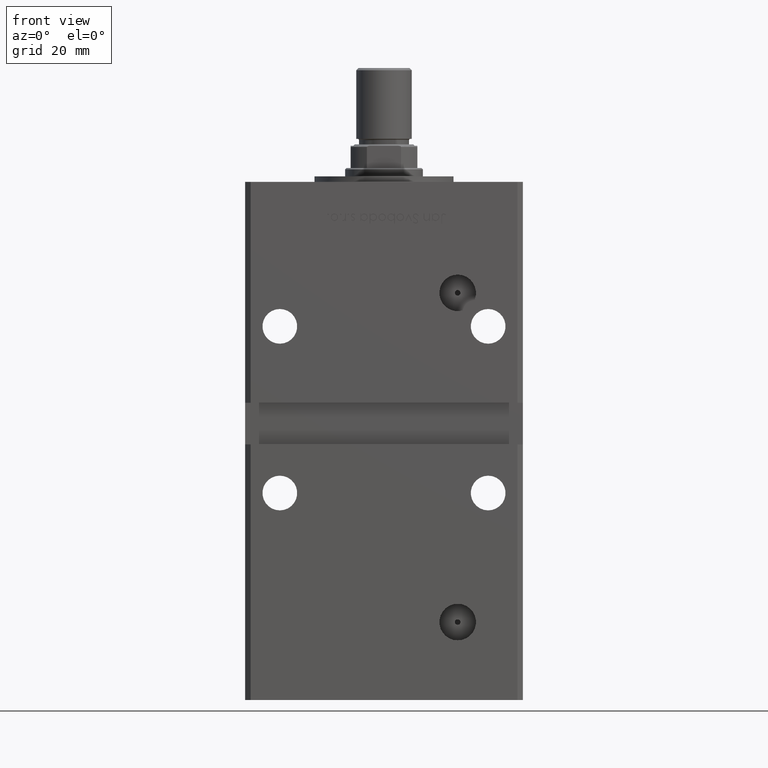
[diagram: clean part render]
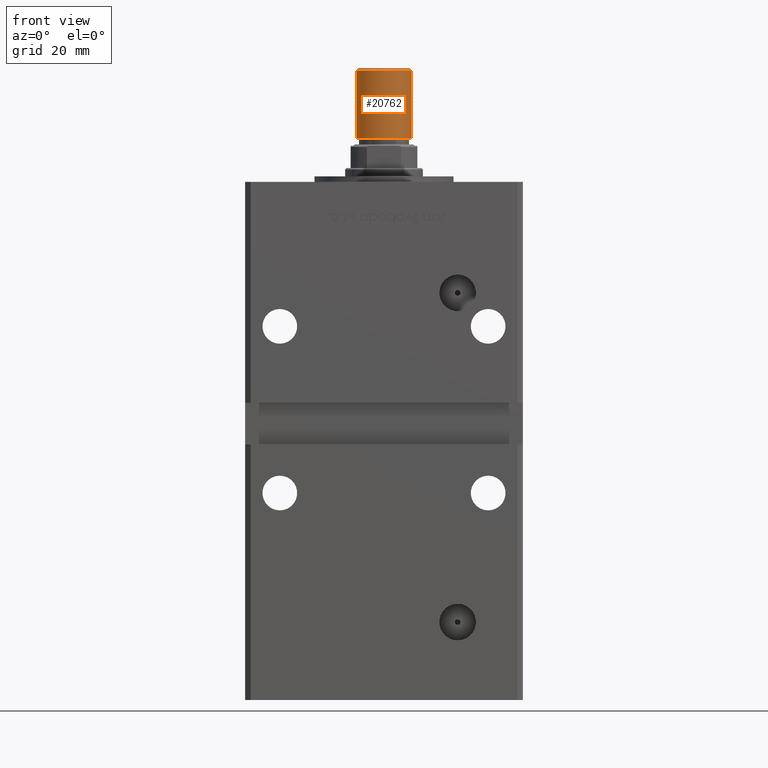
[diagram: same view with one face highlighted and labeled with its STEP entity id]
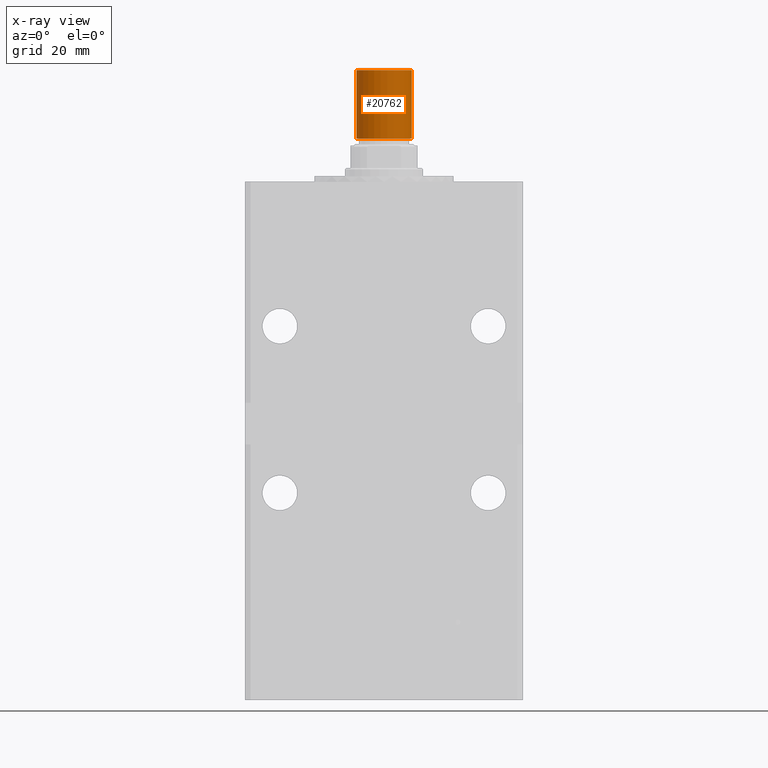
[diagram: x-ray of the same camera — body ghosted, the highlighted face saturated]
A machine part, front view. The second image highlights one B-rep face of the part: STEP entity #20762.
The next image is the same camera in x-ray: the body ghosted, the highlighted face saturated — about 0% of this face is hidden behind the body in this view.
In plain terms, the highlighted cylindrical surface (edge-blend (fillet) strip) has radius 10 mm, axis along (0, -0, 1).
Its self-contained STEP definition (entity closure, byte-faithful):
#887 = DIRECTION ( 'NONE',  ( 1.000000000000000000, 0.000000000000000000, 0.000000000000000000 ) ) ;
#2333 = CARTESIAN_POINT ( 'NONE',  ( 10.00000000000000000, 1.224646799147353256E-15, 0.7999999999999986011 ) ) ;
#2499 = CARTESIAN_POINT ( 'NONE',  ( -10.00000000000000000, 0.000000000000000000, 25.50000000000000000 ) ) ;
#2566 = CARTESIAN_POINT ( 'NONE',  ( 10.00000000000000000, 1.224646799147353256E-15, 25.50000000000000000 ) ) ;
#4635 = DIRECTION ( 'NONE',  ( -0.000000000000000000, -0.000000000000000000, 1.000000000000000000 ) ) ;
#6014 = CARTESIAN_POINT ( 'NONE',  ( 10.00000000000000000, 1.224646799147353256E-15, 25.50000000000000000 ) ) ;
#6171 = DIRECTION ( 'NONE',  ( -1.000000000000000000, 0.000000000000000000, 0.000000000000000000 ) ) ;
#10974 = DIRECTION ( 'NONE',  ( -0.000000000000000000, -0.000000000000000000, -1.000000000000000000 ) ) ;
#11049 = CARTESIAN_POINT ( 'NONE',  ( -10.00000000000000000, 0.000000000000000000, 25.50000000000000000 ) ) ;
#12256 = CARTESIAN_POINT ( 'NONE',  ( 0.000000000000000000, 0.000000000000000000, 0.7999999999999986011 ) ) ;
#12700 = ORIENTED_EDGE ( 'NONE', *, *, #34829, .F. ) ;
#13809 = AXIS2_PLACEMENT_3D ( 'NONE', #12256, #4635, #24710 ) ;
#14043 = FACE_OUTER_BOUND ( 'NONE', #16791, .T. ) ;
#14661 = ORIENTED_EDGE ( 'NONE', *, *, #26875, .T. ) ;
#16791 = EDGE_LOOP ( 'NONE', ( #12700, #29316, #51809, #14661 ) ) ;
#19571 = LINE ( 'NONE', #2499, #53282 ) ;
#20762 = ADVANCED_FACE ( 'NONE', ( #14043 ), #47357, .T. ) ;
#22932 = VERTEX_POINT ( 'NONE', #2333 ) ;
#22988 = VECTOR ( 'NONE', #10974, 1000.000000000000000 ) ;
#24710 = DIRECTION ( 'NONE',  ( 1.000000000000000000, 0.000000000000000000, 0.000000000000000000 ) ) ;
#25921 = CIRCLE ( 'NONE', #13809, 10.00000000000000000 ) ;
#26875 = EDGE_CURVE ( 'NONE', #51744, #22932, #25921, .T. ) ;
#27345 = DIRECTION ( 'NONE',  ( 0.000000000000000000, 0.000000000000000000, 1.000000000000000000 ) ) ;
#29198 = AXIS2_PLACEMENT_3D ( 'NONE', #30574, #47085, #6171 ) ;
#29316 = ORIENTED_EDGE ( 'NONE', *, *, #34114, .F. ) ;
#29873 = AXIS2_PLACEMENT_3D ( 'NONE', #42744, #27345, #887 ) ;
#30574 = CARTESIAN_POINT ( 'NONE',  ( 0.000000000000000000, 0.000000000000000000, 25.50000000000000000 ) ) ;
#34114 = EDGE_CURVE ( 'NONE', #44117, #49388, #43658, .T. ) ;
#34829 = EDGE_CURVE ( 'NONE', #49388, #22932, #48618, .T. ) ;
#35129 = EDGE_CURVE ( 'NONE', #44117, #51744, #19571, .T. ) ;
#40149 = DIRECTION ( 'NONE',  ( -0.000000000000000000, -0.000000000000000000, -1.000000000000000000 ) ) ;
#42744 = CARTESIAN_POINT ( 'NONE',  ( 0.000000000000000000, 0.000000000000000000, 25.50000000000000000 ) ) ;
#43658 = CIRCLE ( 'NONE', #29873, 10.00000000000000000 ) ;
#44117 = VERTEX_POINT ( 'NONE', #11049 ) ;
#47085 = DIRECTION ( 'NONE',  ( -0.000000000000000000, -0.000000000000000000, -1.000000000000000000 ) ) ;
#47280 = CARTESIAN_POINT ( 'NONE',  ( -10.00000000000000000, 0.000000000000000000, 0.7999999999999986011 ) ) ;
#47357 = CYLINDRICAL_SURFACE ( 'NONE', #29198, 10.00000000000000000 ) ;
#48618 = LINE ( 'NONE', #2566, #22988 ) ;
#49388 = VERTEX_POINT ( 'NONE', #6014 ) ;
#51744 = VERTEX_POINT ( 'NONE', #47280 ) ;
#51809 = ORIENTED_EDGE ( 'NONE', *, *, #35129, .T. ) ;
#53282 = VECTOR ( 'NONE', #40149, 1000.000000000000000 ) ;